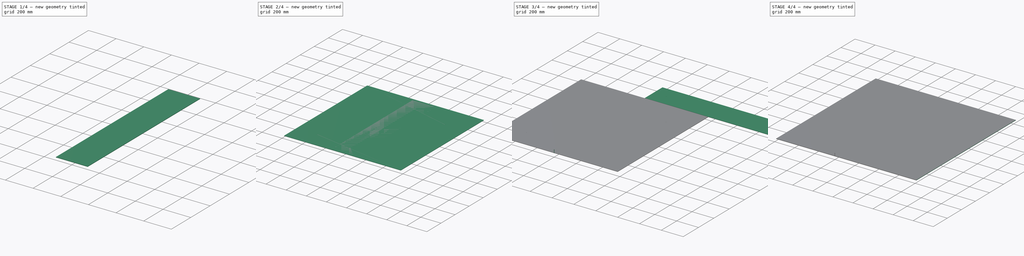
[diagram: build sequence overview — one tinted view per stage of 4, left to right]
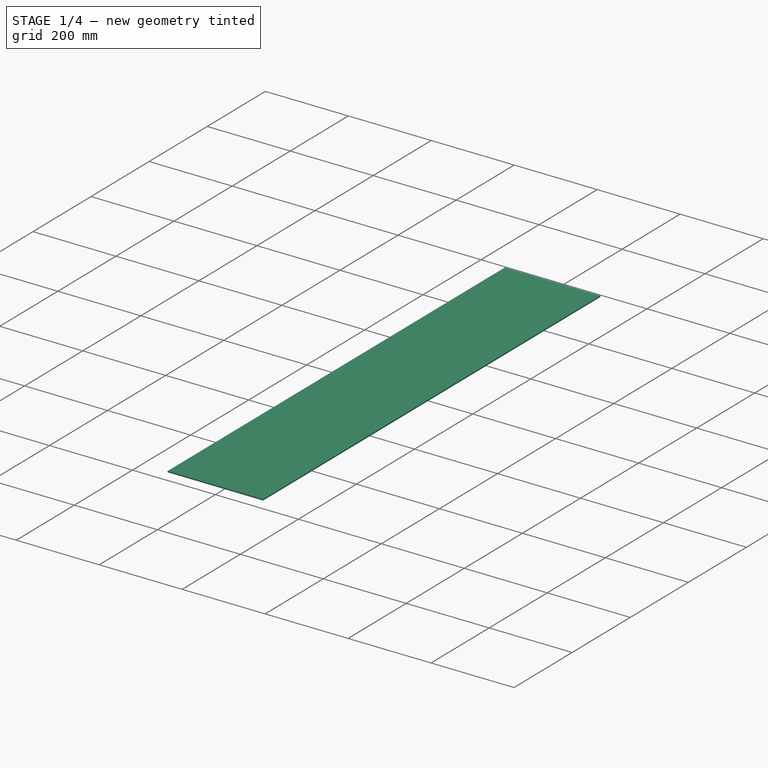
[diagram: stage 1 of 4 — iso view after this stage's code; geometry added in this stage tinted green]
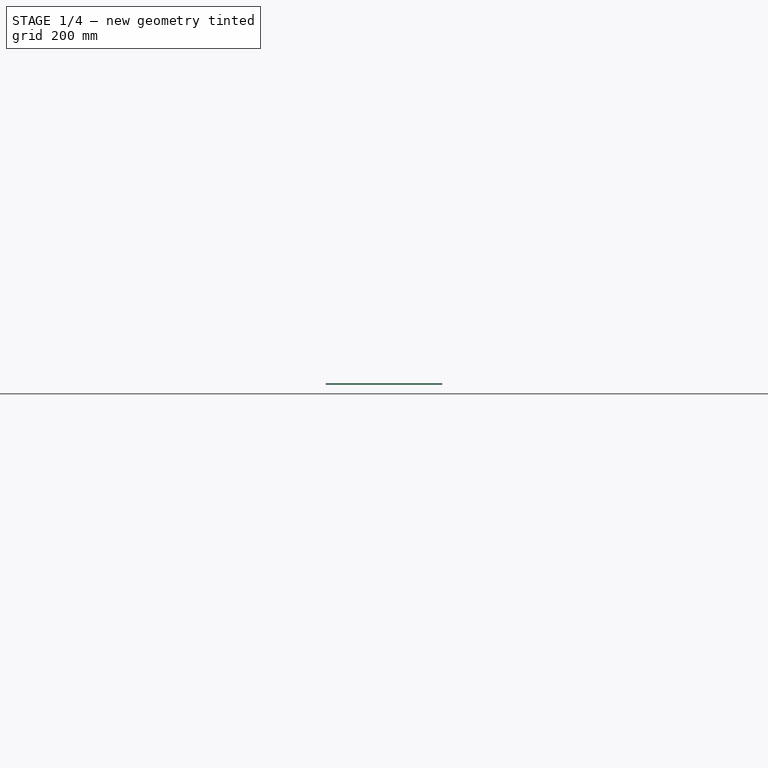
[diagram: stage 1 of 4 — front view after this stage's code; geometry added in this stage tinted green]
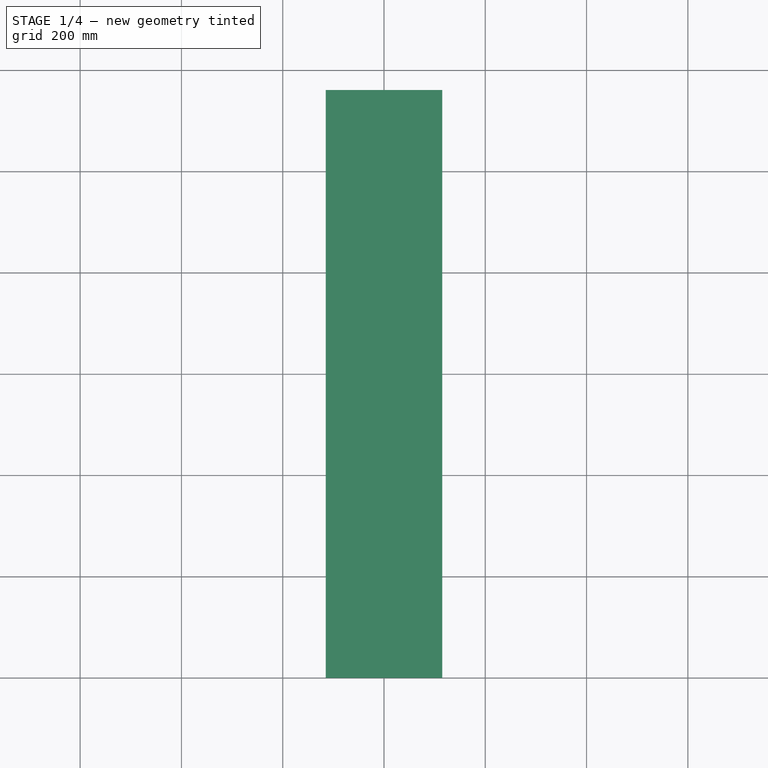
[diagram: stage 1 of 4 — top view after this stage's code; geometry added in this stage tinted green]
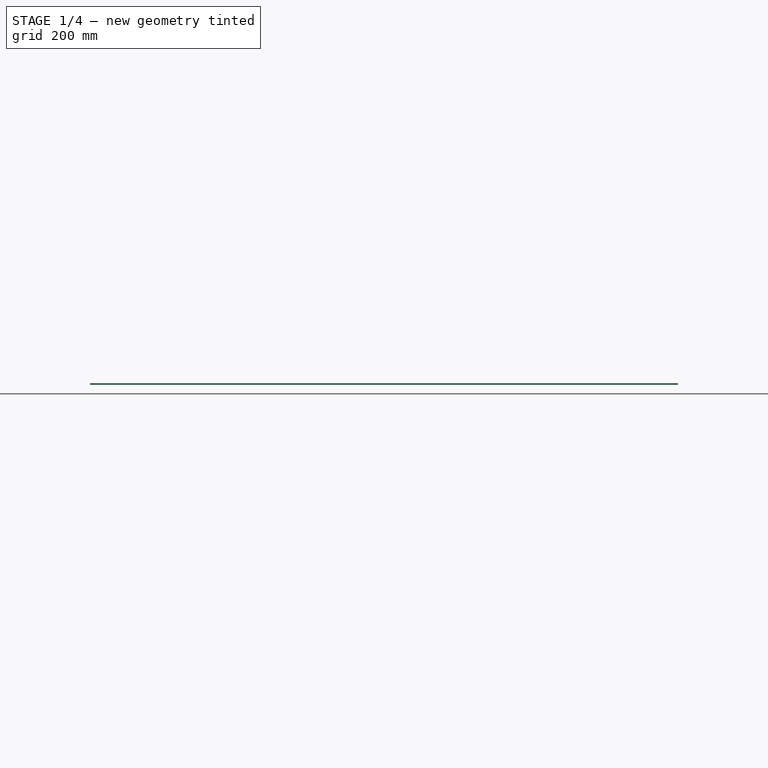
[diagram: stage 1 of 4 — right view after this stage's code; geometry added in this stage tinted green]
FCSTD DOCUMENT  (FreeCAD 0.22R37100 (Git))
Label: composit_flat_stand_2_transport
License: All rights reserved
LicenseURL: http://en.wikipedia.org/wiki/All_rights_reserved
objects: Sketcher::SketchObject×6, App::DocumentObjectGroup×6, Part::FeaturePython×5, Path::FeaturePython×4, PartDesign::Pad×3, PartDesign::Pocket×3, PartDesign::Body×3, Measure::MeasureLength×3, App::FeaturePython×1, Part::Part2DObjectPython×1
note: 29 computed .brp shape members not serialized (recipe doc carries the construction recipe); baked Part::Feature solids carry a one-line shape summary decoded from their .brp

FEATURE [PartDesign::Pad] Pad001
  Direction = (0,0,1)
  Length = 3
  Length2 = 10
  Profile = -> Sketch001
  ReferenceAxis = -> Sketch001 [N_Axis]
  Suppressed = false
  Type = 0
FEATURE [PartDesign::Pad] Pad002
  Direction = (0,0,1)
  Length = 3
  Length2 = 10
  Profile = -> Sketch002
  ReferenceAxis = -> Sketch002 [N_Axis]
  Suppressed = false
  Type = 0
FEATURE [Sketcher::SketchObject] Sketch005
  AttachmentSupport = -> [XY_Plane002]
  ExternalGeometry = -> [Sketch002]
  FullyConstrained = true
  MapMode = 5
  sketch-geometry (6):
    g0: LineSegment StartX=-115 StartY=1161 StartZ=0 EndX=0 EndY=1046 EndZ=0
    g1: LineSegment StartX=0 StartY=1046 StartZ=0 EndX=115 EndY=1161 EndZ=0
    g2: LineSegment StartX=0 StartY=1161 StartZ=0 EndX=0 EndY=1046 EndZ=0
    g3: LineSegment StartX=0 StartY=0 StartZ=0 EndX=0 EndY=115 EndZ=0
    g4: Circle CenterX=0 CenterY=115 CenterZ=0 NormalX=0 NormalY=0 NormalZ=1 AngleXU=0 Radius=1.65
    g5: Circle CenterX=0 CenterY=1046 CenterZ=0 NormalX=0 NormalY=0 NormalZ=1 AngleXU=0 Radius=1.65
  constraints (15):
    c: Coincident(g-3,g0)
    c: PointOnObject(g0,g-2)
    c: Coincident(g0,g1)
    c: Coincident(g1,g-3)
    c: Angle(g1) = 0.785398
    c: PointOnObject(g2,g-3)
    c: Coincident(g2,g0)
    c: Coincident(g3,g-1)
    c: PointOnObject(g3,g-2)
    c: Vertical(g2)
    c: Equal(g2,g3)
    c: Coincident(g4,g3)
    c: Coincident(g5,g0)
    c: Equal(g4,g5)
    c: Diameter(g4) = 3.3
FEATURE [PartDesign::Pocket] Pocket002
  BaseFeature = -> Pad002
  Direction = (0,0,-1)
  Length = 5
  Length2 = 5
  Midplane = true
  Profile = -> Sketch005
  ReferenceAxis = -> Sketch005 [N_Axis]
  Suppressed = false
  Type = 1
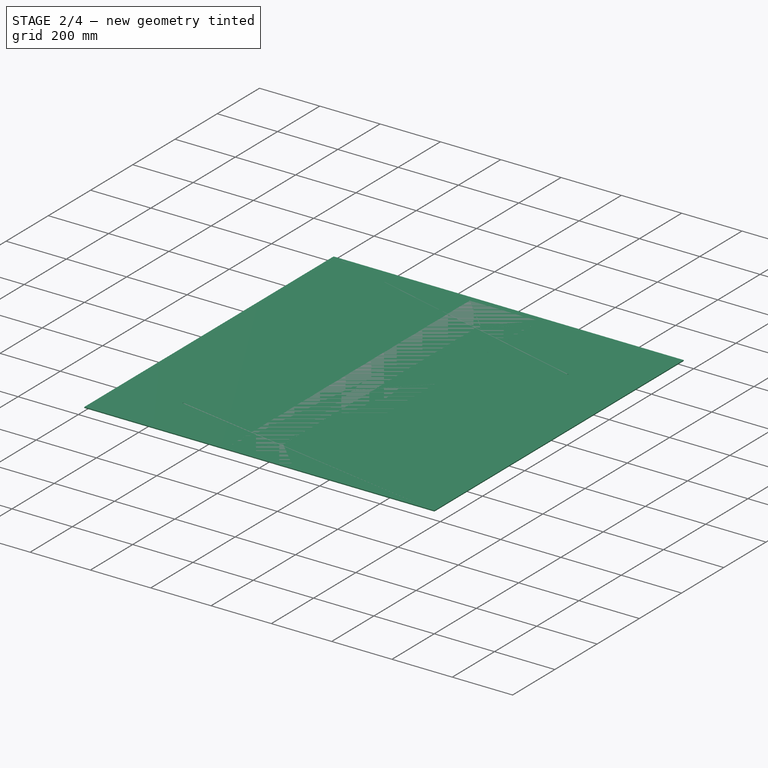
[diagram: stage 2 of 4 — iso view after this stage's code; geometry added in this stage tinted green]
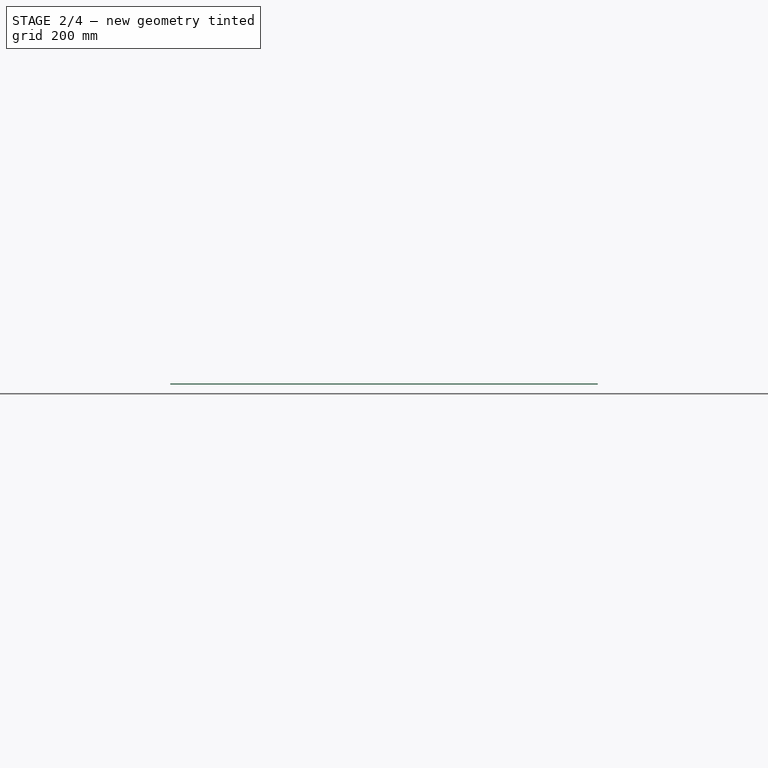
[diagram: stage 2 of 4 — front view after this stage's code; geometry added in this stage tinted green]
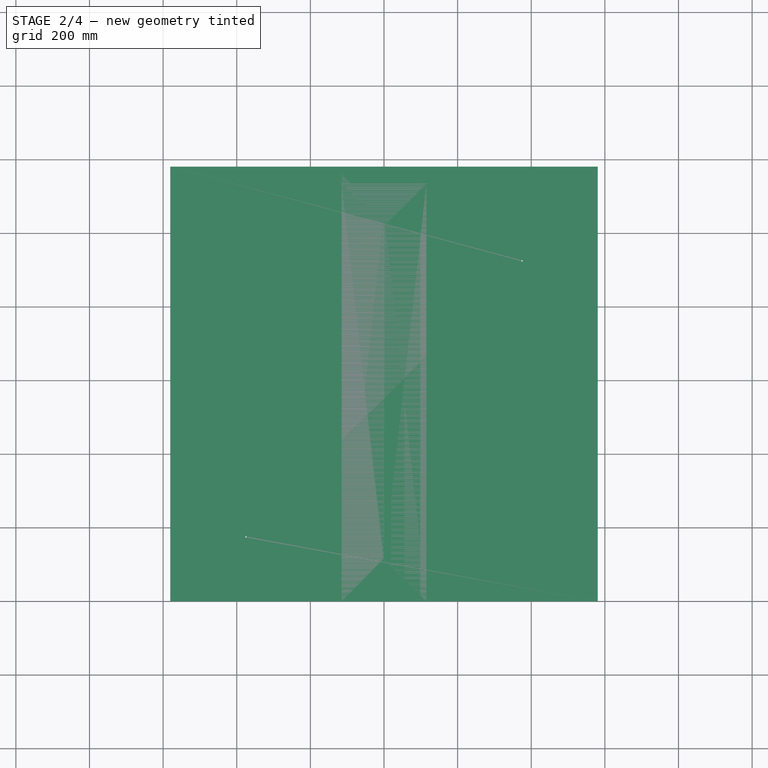
[diagram: stage 2 of 4 — top view after this stage's code; geometry added in this stage tinted green]
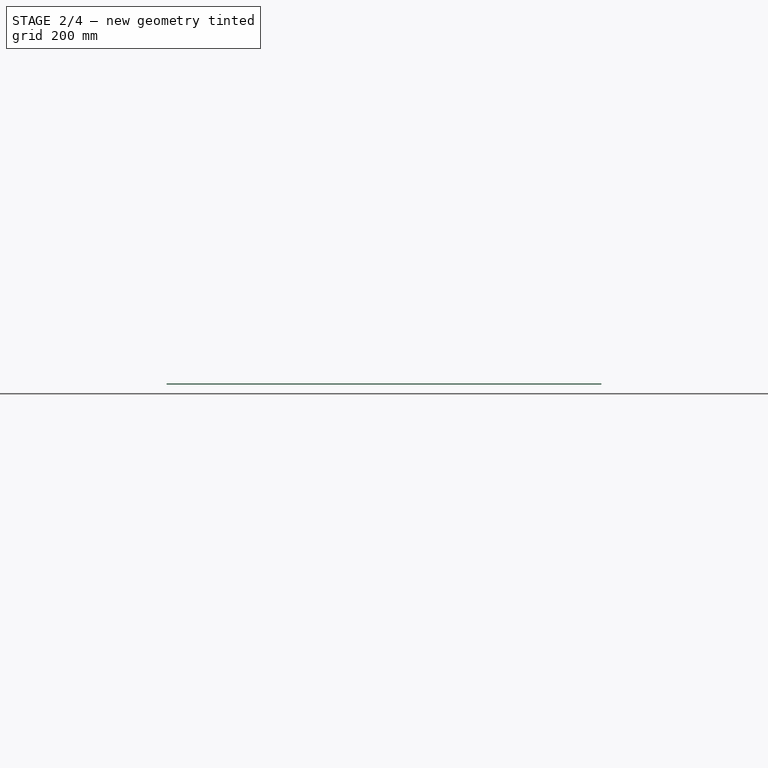
[diagram: stage 2 of 4 — right view after this stage's code; geometry added in this stage tinted green]
FEATURE [Sketcher::SketchObject] Sketch
  AttachmentSupport = -> [XY_Plane]
  FullyConstrained = true
  MapMode = 5
  sketch-geometry (5):
    g0: LineSegment StartX=580.5 StartY=1181 StartZ=0 EndX=-580.5 EndY=1181 EndZ=0
    g1: LineSegment StartX=-580.5 StartY=1181 StartZ=0 EndX=-580.5 EndY=0 EndZ=0
    g2: LineSegment StartX=-580.5 StartY=0 StartZ=0 EndX=580.5 EndY=0 EndZ=0
    g3: LineSegment StartX=580.5 StartY=0 StartZ=0 EndX=580.5 EndY=1181 EndZ=0
    g4: GeomPoint X=0 Y=590.5 Z=0
  constraints (13):
    c: Coincident(g0,g1)
    c: Coincident(g1,g2)
    c: Coincident(g2,g3)
    c: Coincident(g3,g0)
    c: Horizontal(g0)
    c: Horizontal(g2)
    c: Vertical(g1)
    c: Vertical(g3)
    c: Symmetric(g2,g0,g4)
    c: PointOnObject(g4,g-2)
    c: PointOnObject(g1,g-1)
    c: DistanceX(g1,g0) = 1161
    c: DistanceY(g1,g0) = 1181
FEATURE [Sketcher::SketchObject] Sketch001
  AttachmentSupport = -> [XY_Plane001]
  FullyConstrained = true
  MapMode = 5
  sketch-geometry (5):
    g0: LineSegment StartX=115 StartY=1135 StartZ=0 EndX=-115 EndY=1135 EndZ=0
    g1: LineSegment StartX=-115 StartY=1135 StartZ=0 EndX=-115 EndY=0 EndZ=0
    g2: LineSegment StartX=-115 StartY=0 StartZ=0 EndX=115 EndY=0 EndZ=0
    g3: LineSegment StartX=115 StartY=0 StartZ=0 EndX=115 EndY=1135 EndZ=0
    g4: GeomPoint X=0 Y=567.5 Z=0
  constraints (13):
    c: Coincident(g0,g1)
    c: Coincident(g1,g2)
    c: Coincident(g2,g3)
    c: Coincident(g3,g0)
    c: Horizontal(g0)
    c: Horizontal(g2)
    c: Vertical(g1)
    c: Vertical(g3)
    c: Symmetric(g2,g0,g4)
    c: PointOnObject(g4,g-2)
    c: PointOnObject(g1,g-1)
    c: DistanceX(g1,g0) = 230
    c: DistanceY(g1,g0) = 1135
FEATURE [Sketcher::SketchObject] Sketch002
  AttachmentSupport = -> [XY_Plane002]
  FullyConstrained = true
  MapMode = 5
  sketch-geometry (5):
    g0: LineSegment StartX=115 StartY=1161 StartZ=0 EndX=-115 EndY=1161 EndZ=0
    g1: LineSegment StartX=-115 StartY=1161 StartZ=0 EndX=-115 EndY=0 EndZ=0
    g2: LineSegment StartX=-115 StartY=0 StartZ=0 EndX=115 EndY=0 EndZ=0
    g3: LineSegment StartX=115 StartY=0 StartZ=0 EndX=115 EndY=1161 EndZ=0
    g4: GeomPoint X=0 Y=580.5 Z=0
  constraints (13):
    c: Coincident(g0,g1)
    c: Coincident(g1,g2)
    c: Coincident(g2,g3)
    c: Coincident(g3,g0)
    c: Horizontal(g0)
    c: Horizontal(g2)
    c: Vertical(g1)
    c: Vertical(g3)
    c: Symmetric(g2,g0,g4)
    c: PointOnObject(g4,g-2)
    c: PointOnObject(g1,g-1)
    c: DistanceX(g1,g0) = 230
    c: DistanceY(g1,g0) = 1161
FEATURE [PartDesign::Pad] Pad
  Direction = (0,0,1)
  Length = 3
  Length2 = 10
  Profile = -> Sketch
  ReferenceAxis = -> Sketch [N_Axis]
  Suppressed = false
  Type = 0
FEATURE [Path::FeaturePython] __175mm_Endmill  label="3.175mm Endmill001"  # Path/CAM operation (typed FeaturePython)
  HorizFeed = 51.6667
  HorizRapid = 0
  SpindleDir = 0
  SpindleSpeed = 18000
  Tool = -> ToolBit
  ToolNumber = 1
  VertFeed = 16.6667
  VertRapid = 0
  expr: HorizRapid = SetupSheet.HorizRapid
  expr: VertRapid = SetupSheet.VertRapid
FEATURE [App::DocumentObjectGroup] Tools
  Group = -> [__175mm_Endmill]
FEATURE [Part::Part2DObjectPython] Rectangle  # Draft 2D object (typed FeaturePython)
  Area = 0
  ChamferSize = 0
  Columns = 1
  FilletRadius = 0
  Height = 1500
  Length = 1500
  MakeFace = false
  Rows = 1
FEATURE [Sketcher::SketchObject] Sketch003
  AttachmentSupport = -> [XY_Plane]
  FullyConstrained = true
  MapMode = 5
  sketch-geometry (7):
    g0: Circle CenterX=-375 CenterY=175 CenterZ=0 NormalX=0 NormalY=0 NormalZ=1 AngleXU=0 Radius=1.65
    g1: Circle CenterX=375 CenterY=925 CenterZ=0 NormalX=0 NormalY=0 NormalZ=1 AngleXU=0 Radius=1.65
    g2: GeomPoint X=8e-16 Y=550 Z=0
    g3: LineSegment StartX=-375 StartY=175 StartZ=0 EndX=375 EndY=175 EndZ=0
    g4: LineSegment StartX=375 StartY=175 StartZ=0 EndX=375 EndY=925 EndZ=0
    g5: LineSegment StartX=375 StartY=925 StartZ=0 EndX=-375 EndY=925 EndZ=0
    g6: LineSegment StartX=-375 StartY=925 StartZ=0 EndX=-375 EndY=175 EndZ=0
  constraints (17):
    c: PointOnObject(g2,g-2)
    c: Symmetric(g0,g1,g2)
    c: Coincident(g3,g4)
    c: Coincident(g4,g5)
    c: Coincident(g5,g6)
    c: Coincident(g6,g3)
    c: Horizontal(g3)
    c: Horizontal(g5)
    c: Vertical(g4)
    c: Vertical(g6)
    c: Coincident(g3,g0)
    c: Coincident(g4,g1)
    c: Equal(g5,g4)
    c: DistanceY(g2) = 550
    c: DistanceX(g3,g3) = 750
    c: Equal(g0,g1)
    c: Diameter(g0) = 3.3
FEATURE [PartDesign::Pocket] Pocket
  BaseFeature = -> Pad
  Direction = (0,0,-1)
  Length = 5
  Length2 = 5
  Midplane = true
  Profile = -> Sketch003
  ReferenceAxis = -> Sketch003 [N_Axis]
  Suppressed = false
  Type = 1
FEATURE [Sketcher::SketchObject] Sketch004
  AttachmentSupport = -> [XY_Plane001]
  ExternalGeometry = -> [Sketch001]
  FullyConstrained = true
  MapMode = 5
  sketch-geometry (6):
    g0: LineSegment StartX=-115 StartY=1135 StartZ=0 EndX=0 EndY=1020 EndZ=0
    g1: LineSegment StartX=0 StartY=1020 StartZ=0 EndX=115 EndY=1135 EndZ=0
    g2: LineSegment StartX=0 StartY=1020 StartZ=0 EndX=5.9e-15 EndY=1135 EndZ=0
    g3: LineSegment StartX=0 StartY=0 StartZ=0 EndX=0 EndY=115 EndZ=0
    g4: Circle CenterX=0 CenterY=115 CenterZ=0 NormalX=0 NormalY=0 NormalZ=1 AngleXU=0 Radius=1.65
    g5: Circle CenterX=0 CenterY=1020 CenterZ=0 NormalX=0 NormalY=0 NormalZ=1 AngleXU=0 Radius=1.65
  constraints (14):
    c: Coincident(g-3,g0)
    c: PointOnObject(g0,g-2)
    c: Coincident(g0,g1)
    c: Coincident(g1,g-3)
    c: Coincident(g0,g2)
    c: Symmetric(g-3,g-3,g2)
    c: Coincident(g-1,g3)
    c: PointOnObject(g3,g-2)
    c: Coincident(g4,g3)
    c: Coincident(g5,g0)
    c: Angle(g1) = 0.785398
    c: Equal(g3,g2)
    c: Equal(g4,g5)
    c: Diameter(g4) = 3.3
FEATURE [PartDesign::Pocket] Pocket001
  BaseFeature = -> Pad001
  Direction = (0,0,-1)
  Length = 5
  Length2 = 5
  Midplane = true
  Profile = -> Sketch004
  ReferenceAxis = -> Sketch004 [N_Axis]
  Suppressed = false
  Type = 1
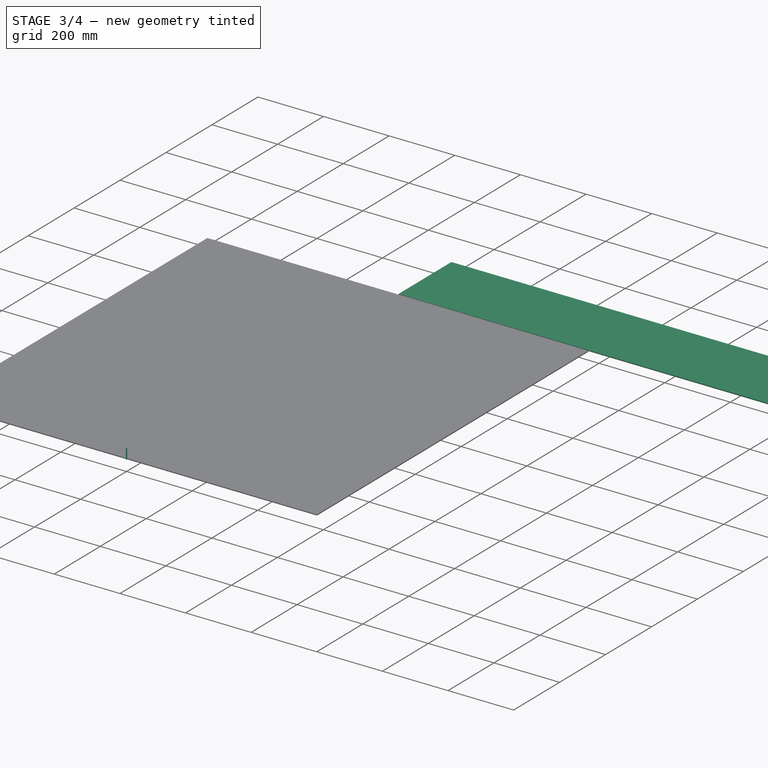
[diagram: stage 3 of 4 — iso view after this stage's code; geometry added in this stage tinted green]
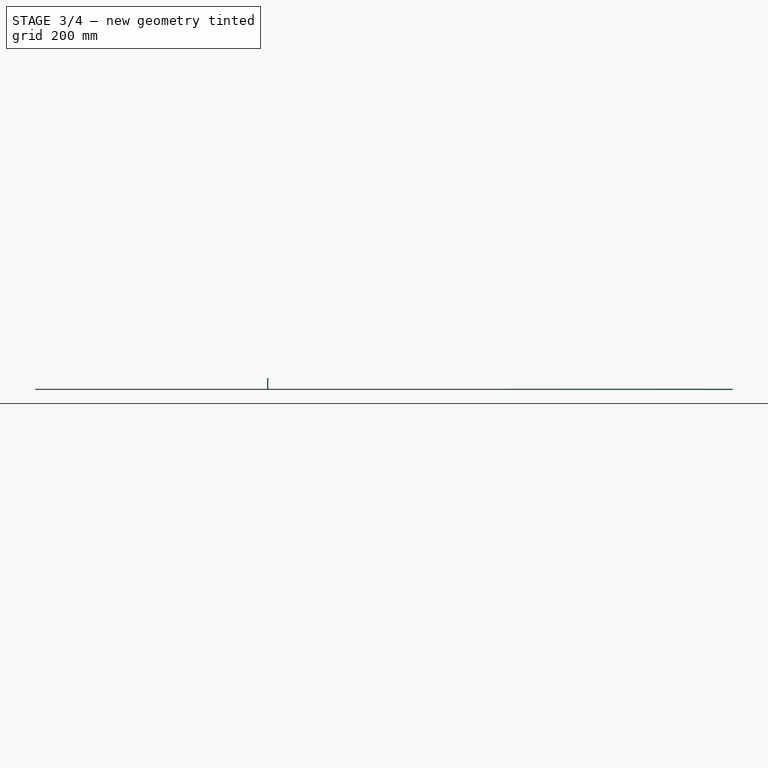
[diagram: stage 3 of 4 — front view after this stage's code; geometry added in this stage tinted green]
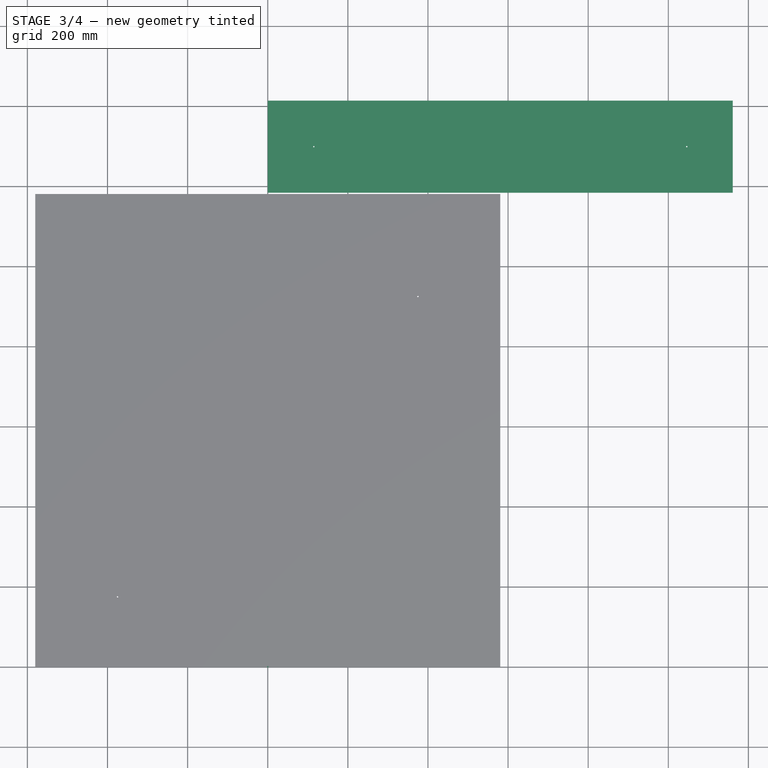
[diagram: stage 3 of 4 — top view after this stage's code; geometry added in this stage tinted green]
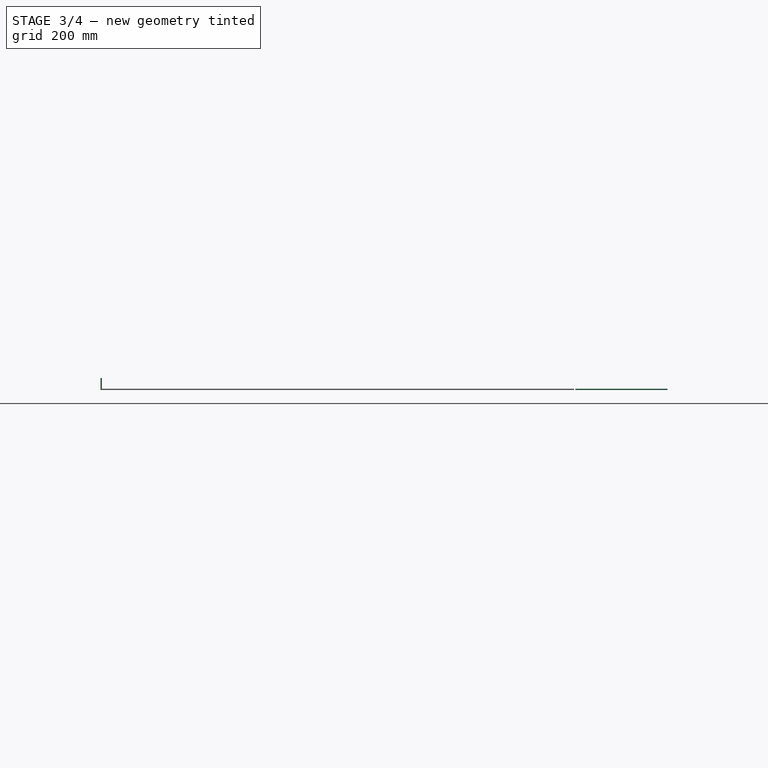
[diagram: stage 3 of 4 — right view after this stage's code; geometry added in this stage tinted green]
FEATURE [App::FeaturePython] SetupSheet  # Path/CAM operation (typed FeaturePython)
  ClearanceHeightExpression = OpStockZMax+SetupSheet.ClearanceHeightOffset
  ClearanceHeightOffset = 5
  CoolantMode = 0
  CoolantModes = None | Flood | Mist
  FinalDepthExpression = OpFinalDepth
  HorizRapid = 0
  ProfileDirection = 1
  ProfileprocessCircles = true
  ProfileprocessHoles = true
  ProfileprocessPerimeter = true
  SafeHeightExpression = OpStockZMax+SetupSheet.SafeHeightOffset
  SafeHeightOffset = 3
  StartDepthExpression = OpStartDepth
  StepDownExpression = OpToolDiameter
  VertRapid = 0
FEATURE [Part::FeaturePython] ToolBit  label="3.175mm Endmill"  # Path/CAM toolbit (typed FeaturePython)
  BitPropertyNames = Chipload | CuttingEdgeHeight | Diameter | Flutes | Length | Material | ShankDiameter | SpindleDirection
  BitShape = <path>
  Chipload = 0
  CuttingEdgeHeight = 30
  Diameter = 3.17
  Flutes = 0
  Length = 10
  Material = 0
  ShankDiameter = 3
  ShapeName = endmill
  SpindleDirection = 0
FEATURE [PartDesign::Body] Body002
  Group = -> [Sketch002,Pad002,Sketch005,Pocket002]
  Origin = -> Origin002
  Tip = -> Pocket002
FEATURE [Part::FeaturePython] Clone002  label="Model-Body002"  # Draft clone (typed FeaturePython)
  AttacherType = Attacher::AttachEngine3D
  Fuse = false
  Objects = -> [Body002]
  PathResource = Model
  Placement = pos=(2.7e-14,1299.2,0) rot=(0,0,-1;1.5708rad)
  Scale = (1,1,1)
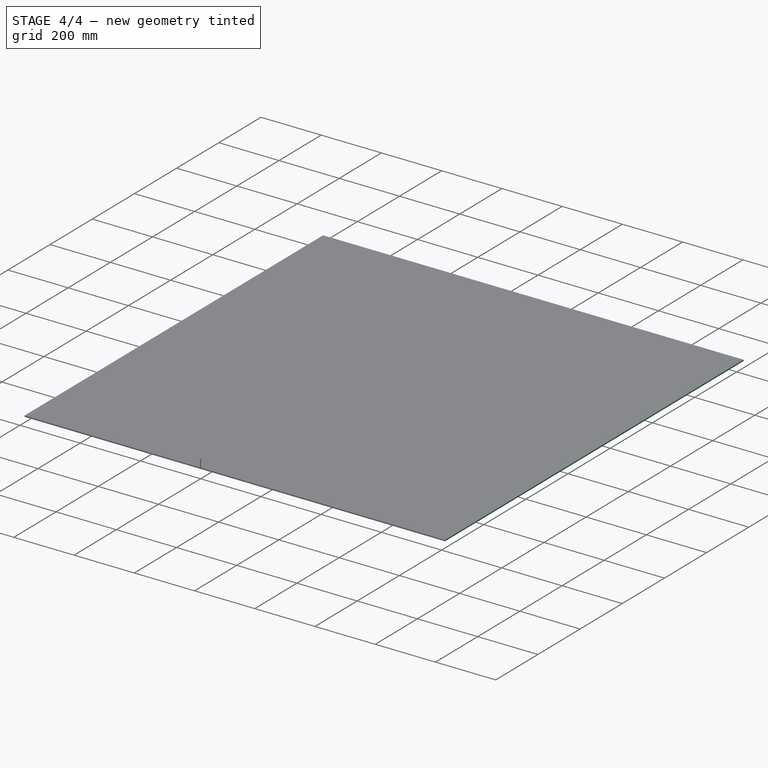
[diagram: stage 4 of 4 — iso view after this stage's code; geometry added in this stage tinted green]
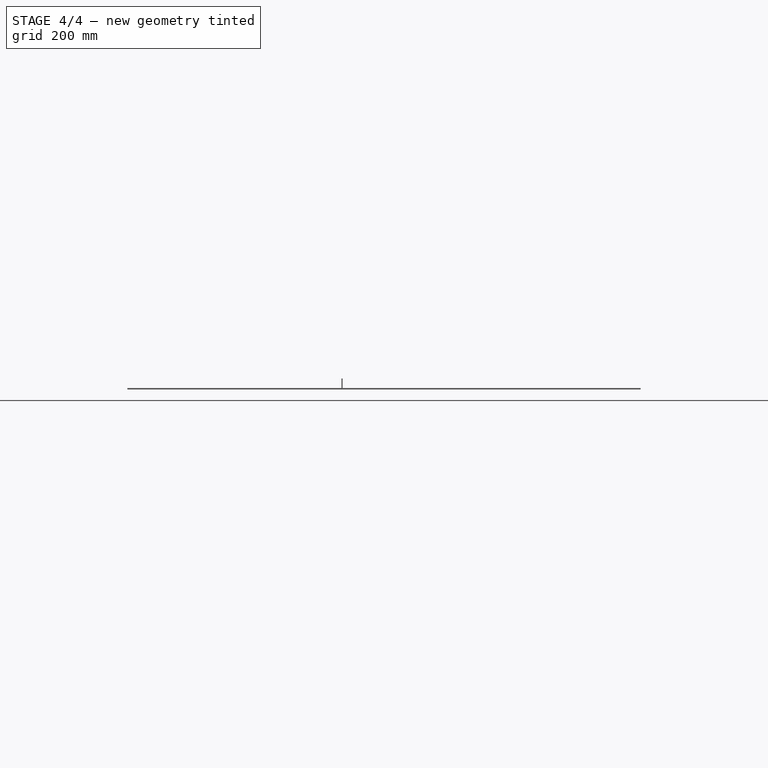
[diagram: stage 4 of 4 — front view after this stage's code; geometry added in this stage tinted green]
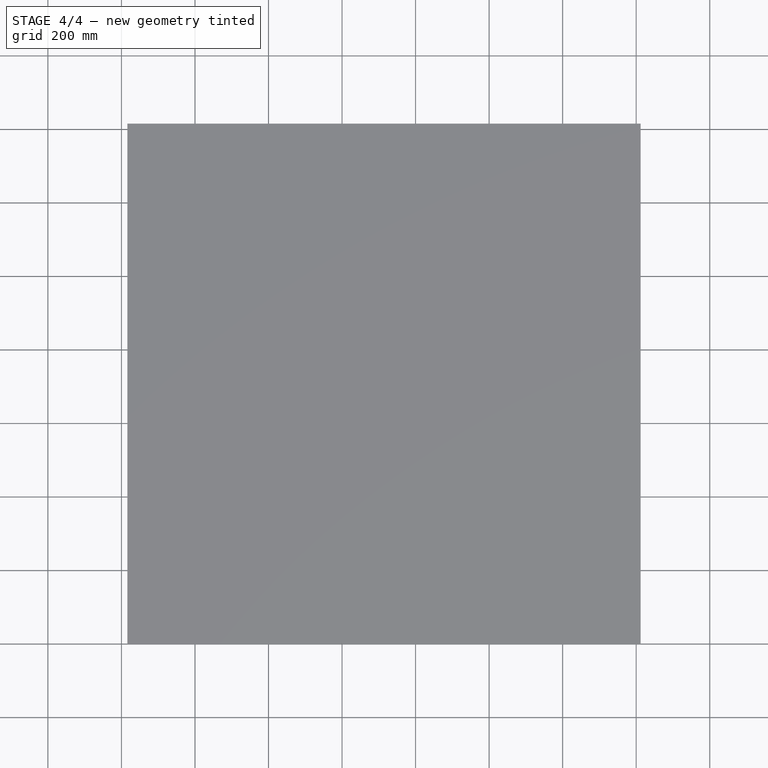
[diagram: stage 4 of 4 — top view after this stage's code; geometry added in this stage tinted green]
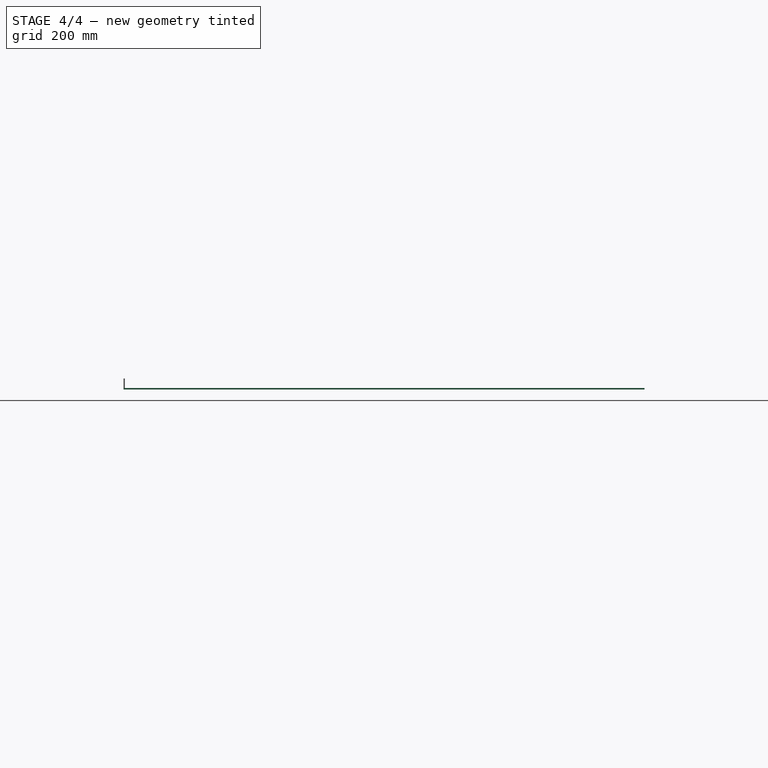
[diagram: stage 4 of 4 — right view after this stage's code; geometry added in this stage tinted green]
FEATURE [PartDesign::Body] Body
  Group = -> [Sketch,Pad,Sketch003,Pocket]
  Origin = -> Origin
  Tip = -> Pocket
FEATURE [Part::FeaturePython] Clone  label="Model-Body"  # Draft clone (typed FeaturePython)
  AttacherType = Attacher::AttachEngine3D
  Fuse = false
  Objects = -> [Body]
  PathResource = Model
  Placement = pos=(580.5,0,0) rot=(0,0,1;0rad)
  Scale = (1,1,1)
FEATURE [PartDesign::Body] Body001
  Group = -> [Sketch001,Pad001,Sketch004,Pocket001]
  Origin = -> Origin001
  Tip = -> Pocket001
FEATURE [Part::FeaturePython] Clone001  label="Model-Body001"  # Draft clone (typed FeaturePython)
  AttacherType = Attacher::AttachEngine3D
  Fuse = false
  Objects = -> [Body001]
  PathResource = Model
  Placement = pos=(1279.2,0,0) rot=(0,0,1;0rad)
  Scale = (1,1,1)
FEATURE [App::DocumentObjectGroup] Model
  Group = -> [Clone,Clone001,Clone002]
FEATURE [Part::FeaturePython] Stock  # WARN: FeaturePython — macro-defined, semantics opaque (R4)
  Base = -> Model
  ExtXneg = 1
  ExtXpos = 1
  ExtYneg = 1
  ExtYpos = 1
  ExtZneg = 0
  ExtZpos = 1
  Placement = pos=(-583,0,0) rot=(0,0,1;0rad)
  StockType = FromBase
FEATURE [App::DocumentObjectGroup] Group  label="parts"
  Group = -> [Body,Body001,Body002]
FEATURE [Path::FeaturePython] Profile  # Path/CAM operation (typed FeaturePython)
  Active = true
  AreaParams:
    Tolerance = 1e-07
    FitArcs = True
    Simplify = False
    CleanDistance = 0.0
    Accuracy = 0.01
    Unit = 1.0
    MinArcPoints = 4
    MaxArcPoints = 100
    ClipperScale = 10000000.0
    Fill = 0
    Coplanar = 0
    Reorient = True
    Outline = False
    Explode = False
    OpenMode = 0
    Deflection = 0.01
    SubjectFill = 0
    ClipFill = 0
    Offset = -1.585
    ExtraPass = 0
    Stepover = 0.0
    LastStepover = 0.0
    JoinType = 0
    EndType = 0
    MiterLimit = 2.0
    RoundPrecision = 0.0
    PocketMode = 0
    ToolRadius = 1.0
    PocketExtraOffset = 0.0
    PocketStepover = 0.0
    PocketLastStepover = 0.0
    FromCenter = False
    Angle = 45.0
    AngleShift = 0.0
    Shift = 0.0
    Thicken = False
    SectionCount = -1
    Stepdown = 1.0
    SectionOffset = 0.0
    SectionTolerance = 1e-06
    SectionMode = 2
    Project = False
  Base = -> [Clone,Clone001,Clone002]
  ClearanceHeight = 25
  CoolantMode = 0
  CycleTime = 00:01:49
  Direction = 1
  FinalDepth = 0
  HandleMultipleFeatures = 0
  JoinType = 0
  MiterLimit = 0.1
  OffsetExtra = 0
  OpFinalDepth = 0
  OpStartDepth = 4
  OpStockZMax = 4
  OpStockZMin = 0
  OpToolDiameter = 3.17
  PathParams = {'orientation': 1, 'feedrate': 51.666666666666664, 'feedrate_v': 16.666666666666668, 'verbose': True, 'resume_height': 7.0, 'retraction': 25.0, 'return_end': True, 'preamble': False, 'start': Vector (115.05626932529609, 1299.1999973835118, 25.0)}
  SafeHeight = 7
  Side = 0
  SplitArcs = false
  StartDepth = 4
  StartPoint = (0,0,0)
  StepDown = 10
  ToolController = -> __175mm_Endmill
  UseComp = true
  UseStartPoint = false
  processCircles = true
  processHoles = true
  processPerimeter = false
  expr: FinalDepth = OpFinalDepth
  expr: SafeHeight = OpStockZMax + SetupSheet.SafeHeightOffset
  expr: StartDepth = OpStartDepth
FEATURE [Path::FeaturePython] Profile001  # Path/CAM operation (typed FeaturePython)
  Active = true
  AreaParams:
    Tolerance = 1e-07
    FitArcs = True
    Simplify = False
    CleanDistance = 0.0
    Accuracy = 0.01
    Unit = 1.0
    MinArcPoints = 4
    MaxArcPoints = 100
    ClipperScale = 10000000.0
    Fill = 0
    Coplanar = 0
    Reorient = True
    Outline = False
    Explode = False
    OpenMode = 0
    Deflection = 0.01
    SubjectFill = 0
    ClipFill = 0
    Offset = 1.585
    ExtraPass = 0
    Stepover = 0.0
    LastStepover = 0.0
    JoinType = 0
    EndType = 0
    MiterLimit = 2.0
    RoundPrecision = 0.0
    PocketMode = 0
    ToolRadius = 1.0
    PocketExtraOffset = 0.0
    PocketStepover = 0.0
    PocketLastStepover = 0.0
    FromCenter = False
    Angle = 45.0
    AngleShift = 0.0
    Shift = 0.0
    Thicken = False
    SectionCount = -1
    Stepdown = 1.0
    SectionOffset = 0.0
    SectionTolerance = 1e-06
    SectionMode = 2
    Project = False
  Base = -> [Clone,Clone001,Clone002]
  ClearanceHeight = 25
  CoolantMode = 0
  CycleTime = 00:04:01
  Direction = 1
  FinalDepth = 0
  HandleMultipleFeatures = 0
  JoinType = 0
  MiterLimit = 0.1
  OffsetExtra = 0
  OpFinalDepth = 0
  OpStartDepth = 4
  OpStockZMax = 4
  OpStockZMin = 0
  OpToolDiameter = 3.17
  PathParams = {'orientation': 0, 'feedrate': 51.666666666666664, 'feedrate_v': 16.666666666666668, 'verbose': True, 'resume_height': 7.0, 'retraction': 25.0, 'return_end': True, 'preamble': False, 'start': Vector (1161.7520597216528, 1182.804782871934, 25.0)}
  SafeHeight = 7
  Side = 0
  SplitArcs = false
  StartDepth = 4
  StartPoint = (0,0,0)
  StepDown = 10
  ToolController = -> __175mm_Endmill
  UseComp = true
  UseStartPoint = false
  processCircles = false
  processHoles = false
  processPerimeter = true
  expr: Base = <<Profile>>.Base
  expr: FinalDepth = OpFinalDepth
  expr: SafeHeight = OpStockZMax + SetupSheet.SafeHeightOffset
  expr: StartDepth = OpStartDepth
FEATURE [App::DocumentObjectGroup] Operations
  Group = -> [Profile,Profile001]
FEATURE [Path::FeaturePython] Job  label="5-tr"  # Path/CAM operation (typed FeaturePython)
  CycleTime = 00:05:50
  Fixtures = G54
  GeometryTolerance = 0.01
  JobType = 0
  LastPostProcessDate = 2024-07-23 12:34:54.556150
  LastPostProcessOutput = <path> \n/mnt/flash/5-tr-1.tap
  Model = -> Model
  Operations = -> Operations
  OrderOutputBy = 2
  PostProcessor = 13
  PostProcessorOutputFile = <path>/%j.tap
  SetupSheet = -> SetupSheet
  SplitOutput = true
  Stock = -> Stock
  Tools = -> Tools
FEATURE [App::DocumentObjectGroup] Group001  label="jobs"
  Group = -> [Job]
FEATURE [Measure::MeasureLength] Length
  Elements = -> [Clone001]
  Length = 230
FEATURE [Measure::MeasureLength] Length001
  Elements = -> [Clone]
  Length = 1181
FEATURE [Measure::MeasureLength] Length002
  Elements = -> [Clone]
  Length = 1161
FEATURE [App::DocumentObjectGroup] Measurements
  Group = -> [Length,Length001,Length002]
note: 3 file-system paths scrubbed to <path> (originals preserved in the JSON sidecar)
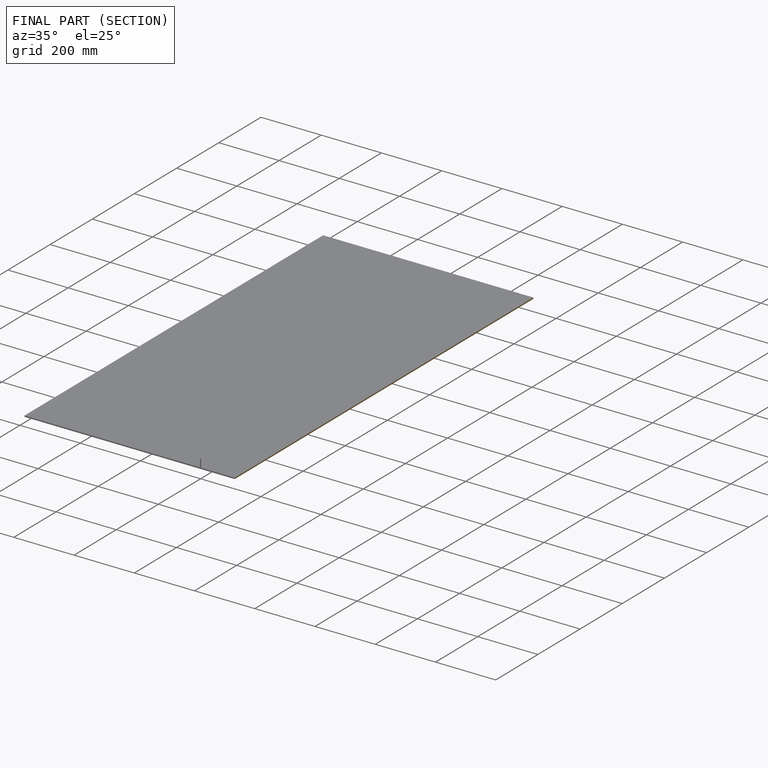
[diagram: finished part — half-section view (interior)]
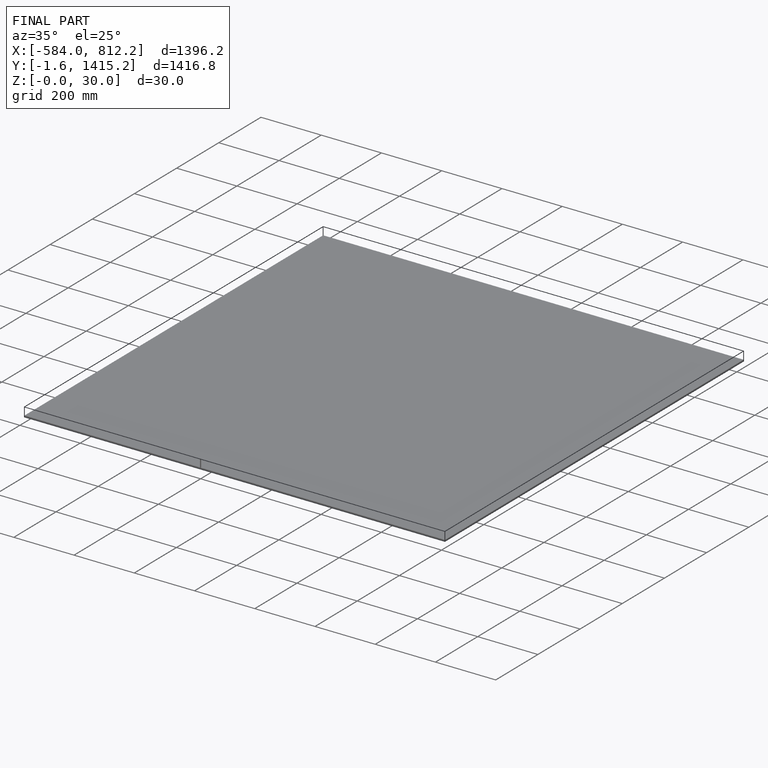
[diagram: finished part — iso view with bounding-box wireframe]
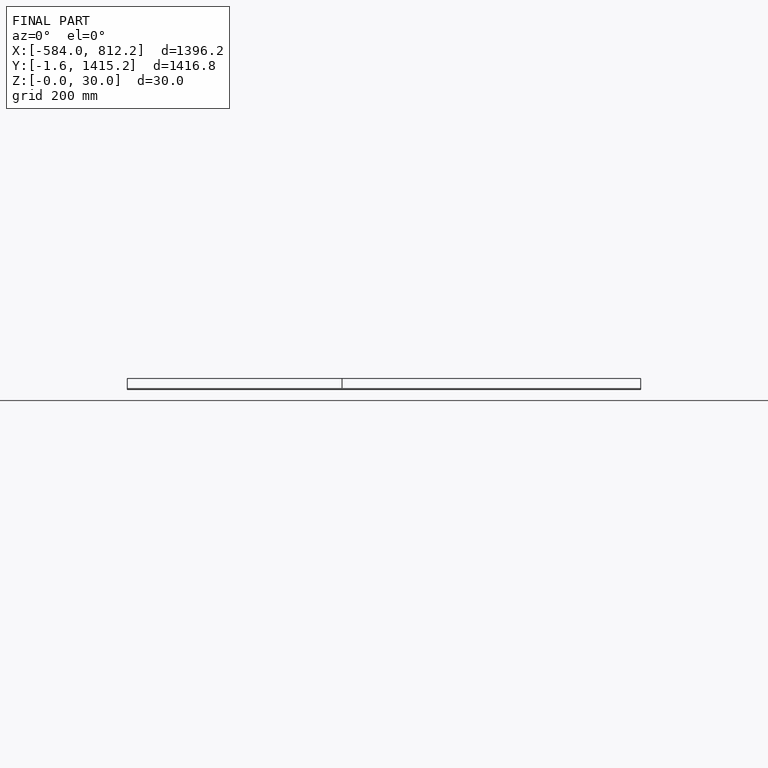
[diagram: finished part — front view with bounding-box wireframe]
